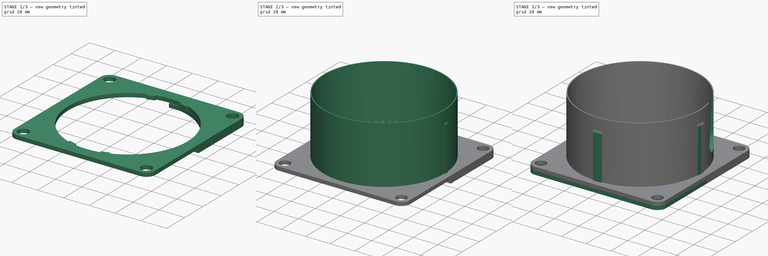
[diagram: build sequence overview — one tinted view per stage of 3, left to right]
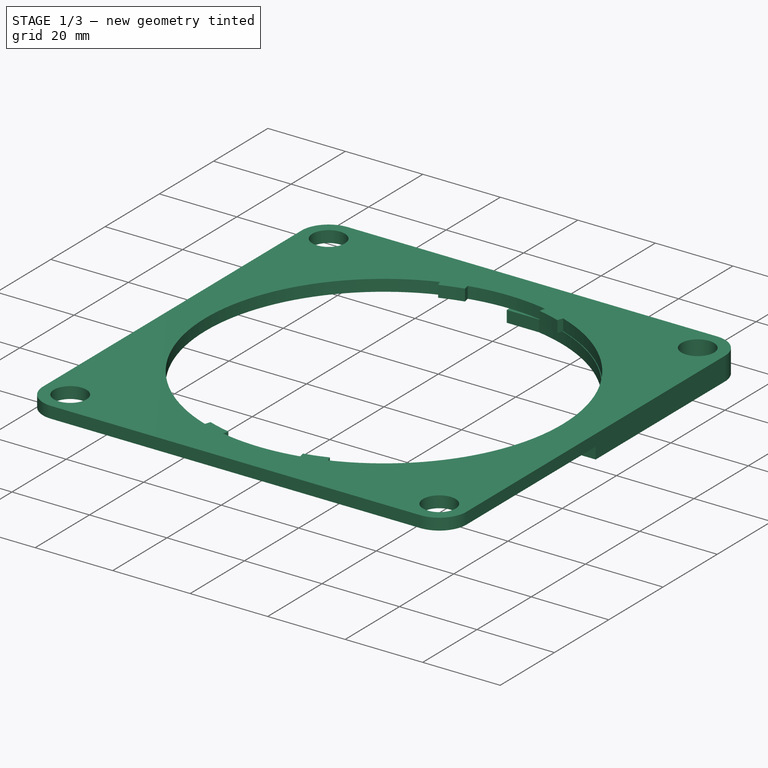
[diagram: stage 1 of 3 — iso view after this stage's code; geometry added in this stage tinted green]
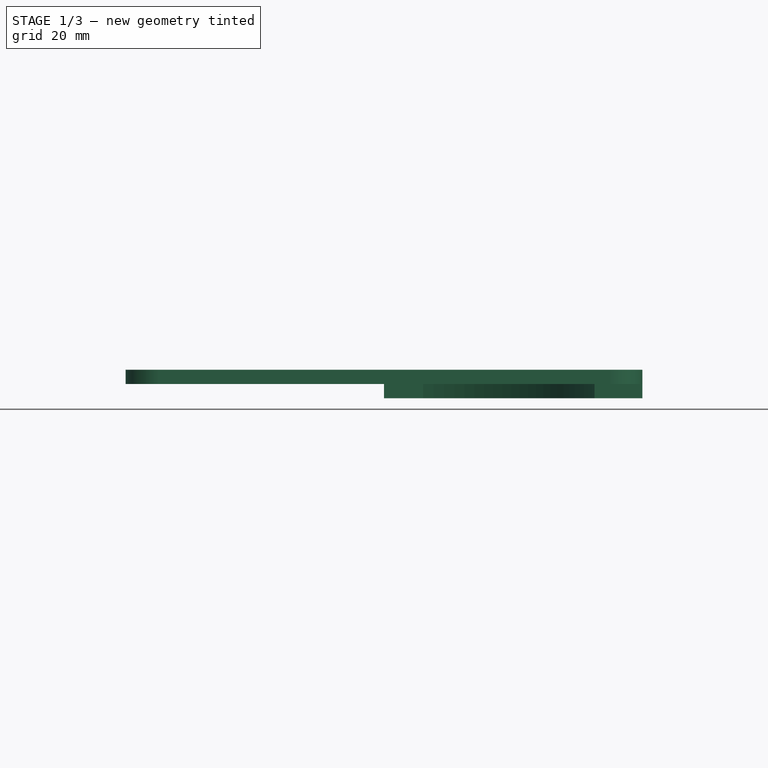
[diagram: stage 1 of 3 — front view after this stage's code; geometry added in this stage tinted green]
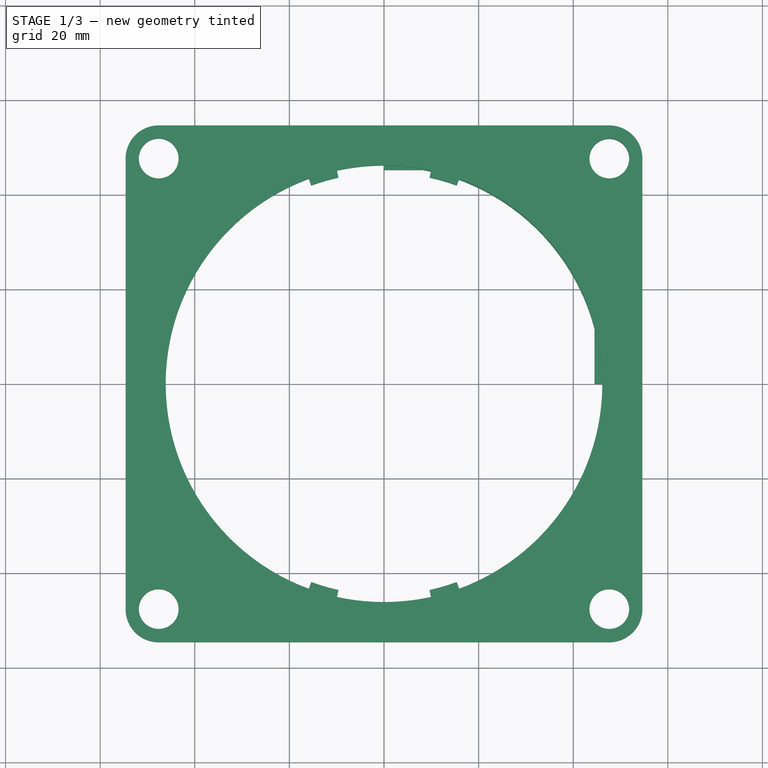
[diagram: stage 1 of 3 — top view after this stage's code; geometry added in this stage tinted green]
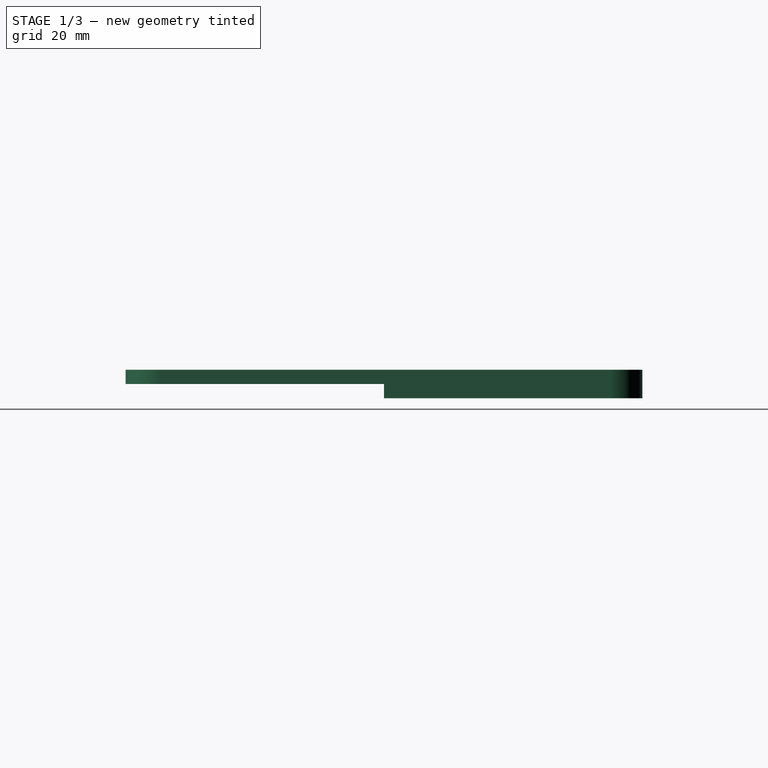
[diagram: stage 1 of 3 — right view after this stage's code; geometry added in this stage tinted green]
FCSTD DOCUMENT  (FreeCAD 0.19R24291 (Git))
Label: Фланец колец2
License: All rights reserved
LicenseURL: http://en.wikipedia.org/wiki/All_rights_reserved
objects: Sketcher::SketchObject×5, PartDesign::Mirrored×5, PartDesign::MultiTransform×3, PartDesign::Pad×2, PartDesign::Revolution×2, PartDesign::Body×2, PartDesign::PolarPattern×1, PartDesign::Plane×1, PartDesign::Pocket×1, PartDesign::SubShapeBinder×1
note: 28 computed .brp shape members not serialized (recipe doc carries the construction recipe); baked Part::Feature solids carry a one-line shape summary decoded from their .brp

FEATURE [Sketcher::SketchObject] Sketch
  FullyConstrained = false
  MapMode = 5
  Support = -> [XY_Plane]
  sketch-geometry (11):
    g0: LineSegment StartX=0 StartY=0 StartZ=0 EndX=56.9502 EndY=56.9502 EndZ=0
    g1: Circle CenterX=47.625 CenterY=47.625 CenterZ=0 NormalX=0 NormalY=0 NormalZ=1 AngleXU=0 Radius=4.2
    g2: LineSegment StartX=0 StartY=45.25 StartZ=0 EndX=8.2727 EndY=45.25 EndZ=0
    g3: LineSegment StartX=44.5 StartY=0 StartZ=0 EndX=44.5 EndY=11.6512 EndZ=0
    g4: ArcOfCircle CenterX=0 CenterY=0 CenterZ=0 NormalX=0 NormalY=0 NormalZ=1 AngleXU=0 Radius=46 StartAngle=0.256076 EndAngle=1.38997
    g5: ArcOfCircle CenterX=47.625 CenterY=47.625 CenterZ=0 NormalX=0 NormalY=0 NormalZ=1 AngleXU=0 Radius=7 StartAngle=1.59842e-08 EndAngle=1.5708
    g6: LineSegment StartX=47.625 StartY=54.625 StartZ=0 EndX=0 EndY=54.625 EndZ=0
    g7: LineSegment StartX=54.625 StartY=47.625 StartZ=0 EndX=54.625 EndY=0 EndZ=0
    g8: LineSegment StartX=0 StartY=45.25 StartZ=0 EndX=0 EndY=54.625 EndZ=0
    g9: LineSegment StartX=44.5 StartY=0 StartZ=0 EndX=54.625 EndY=0 EndZ=0
    g10: ArcOfCircle CenterX=0 CenterY=0 CenterZ=0 NormalX=0 NormalY=0 NormalZ=1 AngleXU=0 Radius=49.35 StartAngle=0 EndAngle=1.5708
  constraints (33):
    c: Coincident(g0,g-1)
    c: Angle(g-1,g0) = 0.785398
    c: PointOnObject(g1,g0)
    c: PointOnObject(g2,g-2)
    c: Horizontal(g2)
    c: PointOnObject(g3,g-1)
    c: Vertical(g3)
    c: Coincident(g4,g-1)
    c: Coincident(g4,g3)
    c: Coincident(g4,g2)
    c: Coincident(g5,g1)
    c: PointOnObject(g6,g-2)
    c: Horizontal(g6)
    c: PointOnObject(g7,g-1)
    c: Vertical(g7)
    c: Distance(g4,g3) = 44.5
    c: Distance(g4,g2) = 45.25
    c: Diameter(g4) = 92
    c: Coincident(g8,g2)
    c: Coincident(g8,g6)
    c: Coincident(g9,g3)
    c: Coincident(g9,g7)
    c: Distance(g1,g-1) = 47.625
    c: Diameter(g1) = 8.4
    c: Diameter(g5) = 14
    c: Coincident(g10,g4)
    c: PointOnObject(g10,g-1)
    c: PointOnObject(g10,g-2)
    c: Diameter(g10) = 98.7
    c: Coincident(g7,g5)
    c: Coincident(g6,g5)
    c: Tangent(g5,g7)
    c: Tangent(g5,g6)
FEATURE [PartDesign::Pad] Pad
  Direction = (1,1,1)
  Length = 3
  Length2 = 100
  Profile = -> Sketch
  Reversed = true
  Type = 0
FEATURE [PartDesign::Body] Body
  Group = -> [Sketch,Pad,Sketch001,Revolution,Sketch002,Revolution001,MultiTransform,Mirrored,Mirrored001,MultiTransform001,Mirrored002,PolarPattern,DatumPlane,Sketch003,Pocket]
  Origin = -> Origin
  Tip = -> Pocket
FEATURE [Sketcher::SketchObject] Sketch004
  FullyConstrained = true
  MapMode = 5
  Support = -> [XY_Plane001]
  sketch-geometry (13):
    g0: ArcOfCircle CenterX=0 CenterY=0 CenterZ=0 NormalX=0 NormalY=0 NormalZ=1 AngleXU=0 Radius=46.15 StartAngle=0 EndAngle=1.21915
    g1: Circle CenterX=47.625 CenterY=47.625 CenterZ=0 NormalX=0 NormalY=0 NormalZ=1 AngleXU=0 Radius=4.2
    g2: ArcOfCircle CenterX=47.625 CenterY=47.625 CenterZ=0 NormalX=0 NormalY=0 NormalZ=1 AngleXU=0 Radius=7 StartAngle=6.28319 EndAngle=7.85398
    g3: LineSegment StartX=47.625 StartY=54.625 StartZ=0 EndX=0 EndY=54.625 EndZ=0
    g4: LineSegment StartX=54.625 StartY=47.625 StartZ=0 EndX=54.625 EndY=0 EndZ=0
    g5: ArcOfCircle CenterX=0 CenterY=0 CenterZ=0 NormalX=0 NormalY=0 NormalZ=1 AngleXU=0 Radius=46.15 StartAngle=1.35363 EndAngle=1.5708
    g6: ArcOfCircle CenterX=0 CenterY=0 CenterZ=0 NormalX=0 NormalY=0 NormalZ=1 AngleXU=0 Radius=44.65 StartAngle=1.21915 EndAngle=1.35363
    g7: LineSegment StartX=9.62052 StartY=43.6012 StartZ=0 EndX=9.94371 EndY=45.066 EndZ=0
    g8: LineSegment StartX=15.3795 StartY=41.9177 StartZ=0 EndX=15.8962 EndY=43.3259 EndZ=0
    g9: LineSegment StartX=9.62052 StartY=43.6012 StartZ=0 EndX=12.5 EndY=42.7595 EndZ=0
    g10: LineSegment StartX=12.5 StartY=42.7595 StartZ=0 EndX=15.3795 EndY=41.9177 EndZ=0
    g11: LineSegment StartX=2.8e-15 StartY=46.15 StartZ=0 EndX=0 EndY=54.625 EndZ=0
    g12: LineSegment StartX=46.15 StartY=0 StartZ=0 EndX=54.625 EndY=0 EndZ=0
  constraints (38):
    c: Coincident(g0,g-1)
    c: Diameter(g0) = 92.3
    c: DistanceX(g1) = 47.625
    c: DistanceY(g1) = 47.625
    c: Diameter(g1) = 8.4
    c: Coincident(g2,g1)
    c: Diameter(g2) = 14
    c: Coincident(g3,g2)
    c: PointOnObject(g3,g-2)
    c: Horizontal(g3)
    c: Coincident(g4,g2)
    c: PointOnObject(g4,g-1)
    c: Vertical(g4)
    c: Tangent(g2,g4)
    c: Tangent(g2,g3)
    c: Coincident(g5,g0)
    c: PointOnObject(g5,g-2)
    c: Coincident(g6,g0)
    c: Coincident(g7,g6)
    c: Coincident(g7,g5)
    c: Coincident(g8,g6)
    c: Coincident(g8,g0)
    c: Perpendicular(g6,g8)
    c: Perpendicular(g6,g7)
    c: Equal(g0,g5)
    c: PointOnObject(g0,g-1)
    c: Distance(g8) = 1.5
    c: Distance(g6,g6) = 6
    c: Coincident(g9,g6)
    c: Coincident(g10,g9)
    c: Coincident(g10,g6)
    c: Equal(g10,g9)
    c: Parallel(g10,g9)
    c: Distance(g9,g-2) = 12.5
    c: Coincident(g11,g5)
    c: Coincident(g11,g3)
    c: Coincident(g12,g0)
    c: Coincident(g12,g4)
FEATURE [PartDesign::SubShapeBinder] Binder
  BindMode = 0
  ClaimChildren = false
  Context = -> Body001 [Binder.]
  Fuse = false
  MakeFace = true
  PartialLoad = false
  Relative = true
  Support = -> [Body[Pocket.Face5]]
  _Version = 2
FEATURE [PartDesign::Pad] Pad001
  Direction = (1,1,1)
  Length = 3
  Length2 = 100
  Profile = -> Sketch004
  Type = 0
FEATURE [PartDesign::Mirrored] Mirrored003
  MirrorPlane = -> Sketch004 [V_Axis]
FEATURE [PartDesign::Mirrored] Mirrored004
  MirrorPlane = -> Sketch004 [H_Axis]
FEATURE [PartDesign::MultiTransform] MultiTransform002
  BaseFeature = -> Pad001
  Originals = -> [Pad001]
  Transformations = -> [Mirrored003,Mirrored004]
FEATURE [PartDesign::Body] Body001
  Group = -> [Sketch004,Binder,Pad001,MultiTransform002,Mirrored003,Mirrored004]
  Origin = -> Origin001
  Tip = -> MultiTransform002
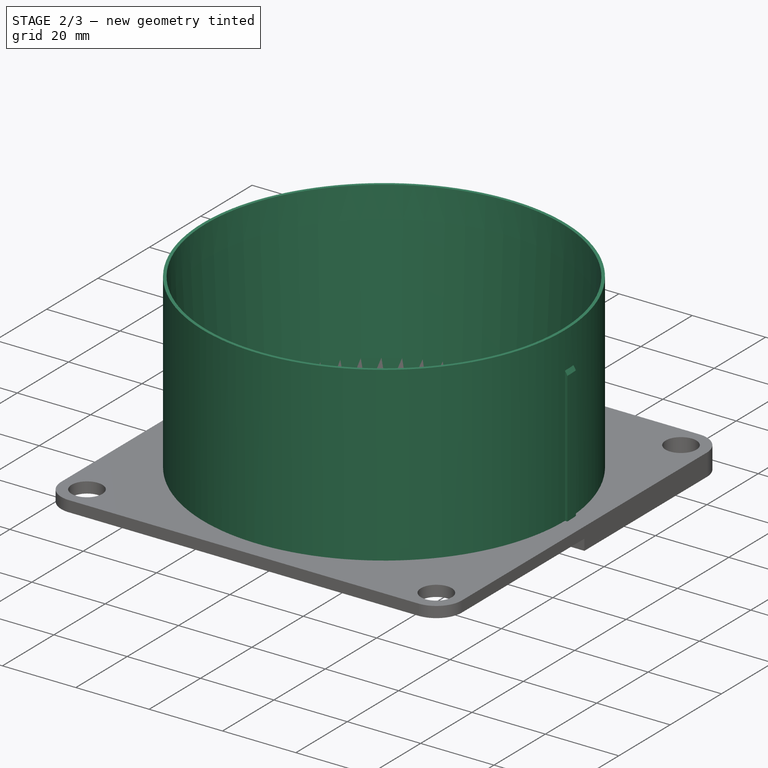
[diagram: stage 2 of 3 — iso view after this stage's code; geometry added in this stage tinted green]
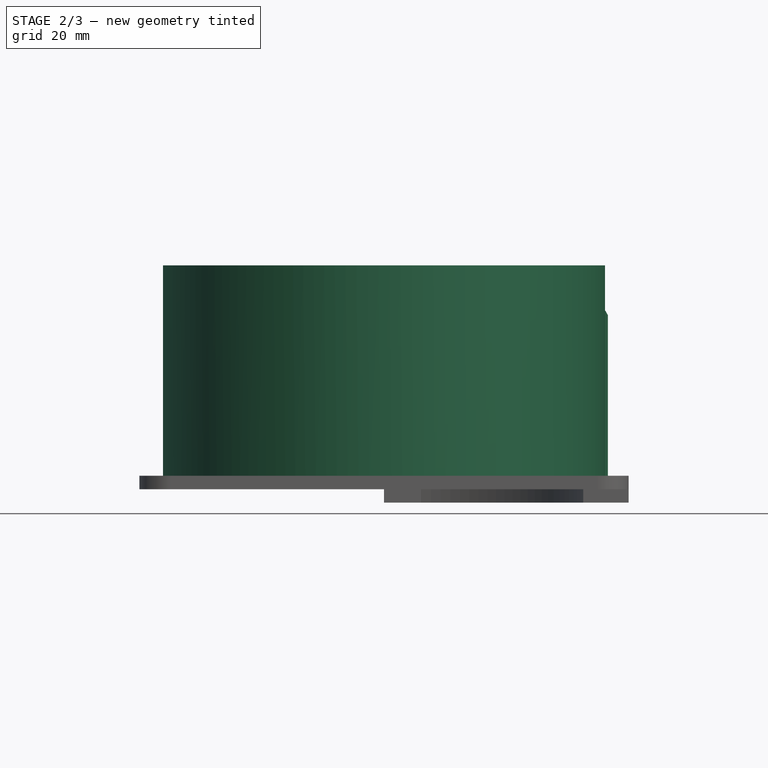
[diagram: stage 2 of 3 — front view after this stage's code; geometry added in this stage tinted green]
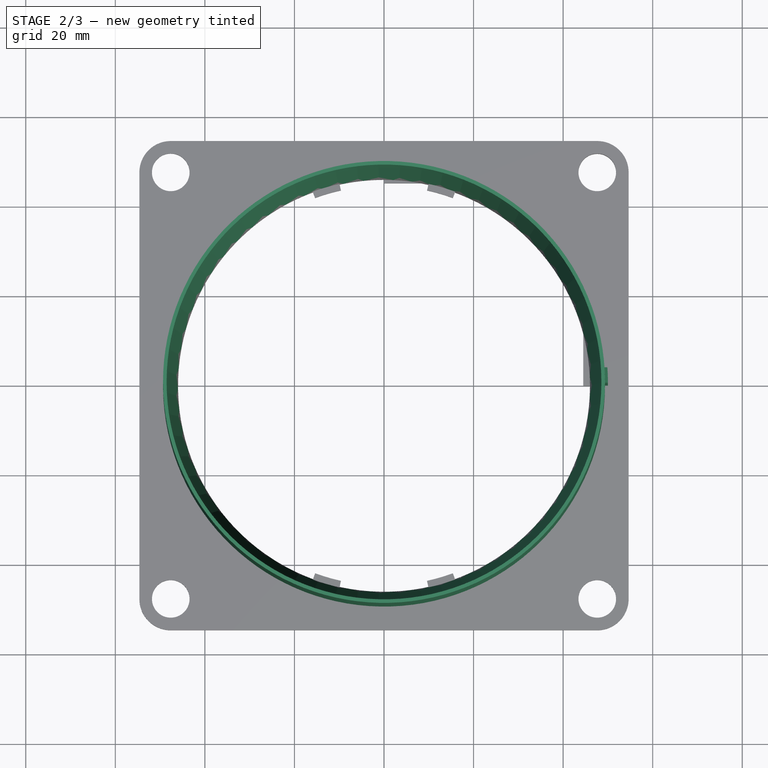
[diagram: stage 2 of 3 — top view after this stage's code; geometry added in this stage tinted green]
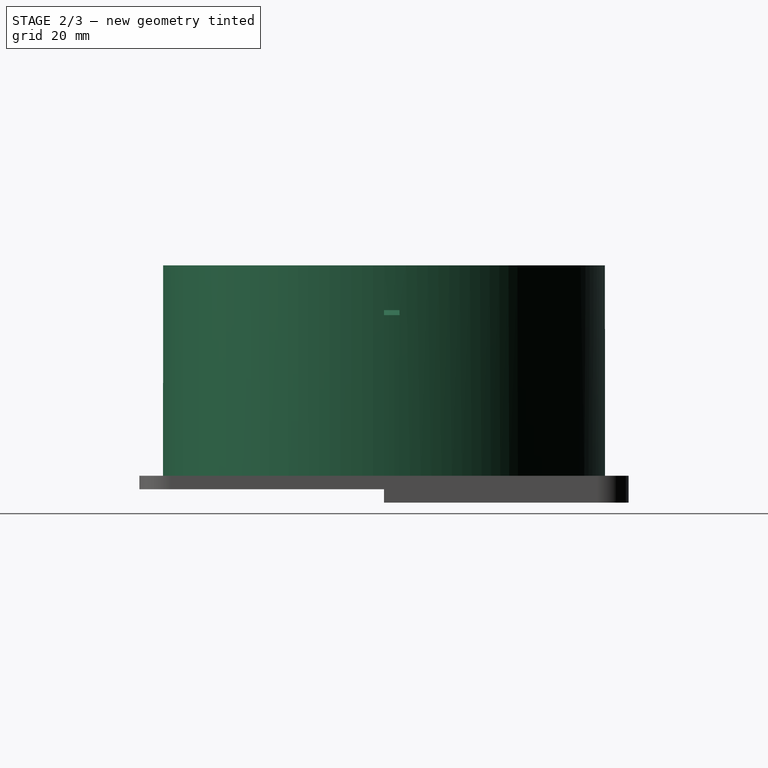
[diagram: stage 2 of 3 — right view after this stage's code; geometry added in this stage tinted green]
FEATURE [Sketcher::SketchObject] Sketch001
  FullyConstrained = true
  MapMode = 5
  Placement = pos=(0,0,0) rot=(1,0,0;1.5708rad)
  Support = -> [XZ_Plane]
  sketch-geometry (4):
    g0: LineSegment StartX=46 StartY=0 StartZ=0 EndX=48.55 EndY=50 EndZ=0
    g1: LineSegment StartX=48.55 StartY=50 StartZ=0 EndX=49.35 EndY=50 EndZ=0
    g2: LineSegment StartX=49.35 StartY=50 StartZ=0 EndX=49.35 EndY=0 EndZ=0
    g3: LineSegment StartX=49.35 StartY=0 StartZ=0 EndX=46 EndY=0 EndZ=0
  constraints (13):
    c: PointOnObject(g0,g-1)
    c: Coincident(g0,g1)
    c: Horizontal(g1)
    c: Coincident(g1,g2)
    c: PointOnObject(g2,g-1)
    c: Vertical(g2)
    c: Coincident(g2,g3)
    c: Coincident(g3,g0)
    c: Distance(g0,g-1) = 46
    c: Distance(g2,g-2) = 49.35
    c: Distance(g1) = 0.8
    c: Distance(g2) = 50
    c: Distance(g3) = 3.35
FEATURE [PartDesign::Revolution] Revolution
  Angle = 360
  Axis = (0,2e-16,1)
  Base = (0,0,0)
  BaseFeature = -> Pad
  Profile = -> Sketch001
  ReferenceAxis = -> Sketch001 [V_Axis]
  Reversed = true
FEATURE [Sketcher::SketchObject] Sketch002
  FullyConstrained = true
  MapMode = 5
  Placement = pos=(0,0,0) rot=(1,0,0;1.5708rad)
  Support = -> [XZ_Plane]
  sketch-geometry (4):
    g0: LineSegment StartX=49.35 StartY=0 StartZ=0 EndX=49.35 EndY=40 EndZ=0
    g1: LineSegment StartX=49.35 StartY=40 StartZ=0 EndX=50 EndY=38.8742 EndZ=0
    g2: LineSegment StartX=50 StartY=38.8742 StartZ=0 EndX=50 EndY=0 EndZ=0
    g3: LineSegment StartX=49.35 StartY=0 StartZ=0 EndX=50 EndY=0 EndZ=0
  constraints (12):
    c: PointOnObject(g0,g-1)
    c: Vertical(g0)
    c: Coincident(g1,g0)
    c: Coincident(g2,g1)
    c: PointOnObject(g2,g-1)
    c: Vertical(g2)
    c: Coincident(g3,g0)
    c: Coincident(g3,g2)
    c: Angle(g0,g1) = 0.523599
    c: Distance(g0,g-2) = 49.35
    c: Distance(g3) = 0.65
    c: Distance(g0) = 40
FEATURE [PartDesign::Revolution] Revolution001
  Angle = 4
  Axis = (0,2e-16,1)
  Base = (0,0,0)
  BaseFeature = -> Revolution
  Profile = -> Sketch002
  ReferenceAxis = -> Sketch002 [V_Axis]
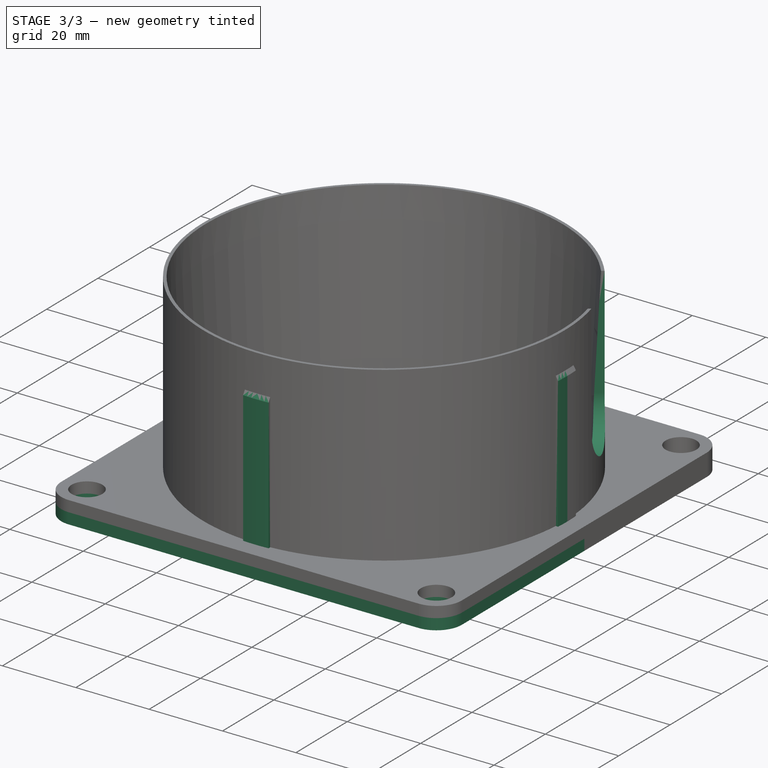
[diagram: stage 3 of 3 — iso view after this stage's code; geometry added in this stage tinted green]
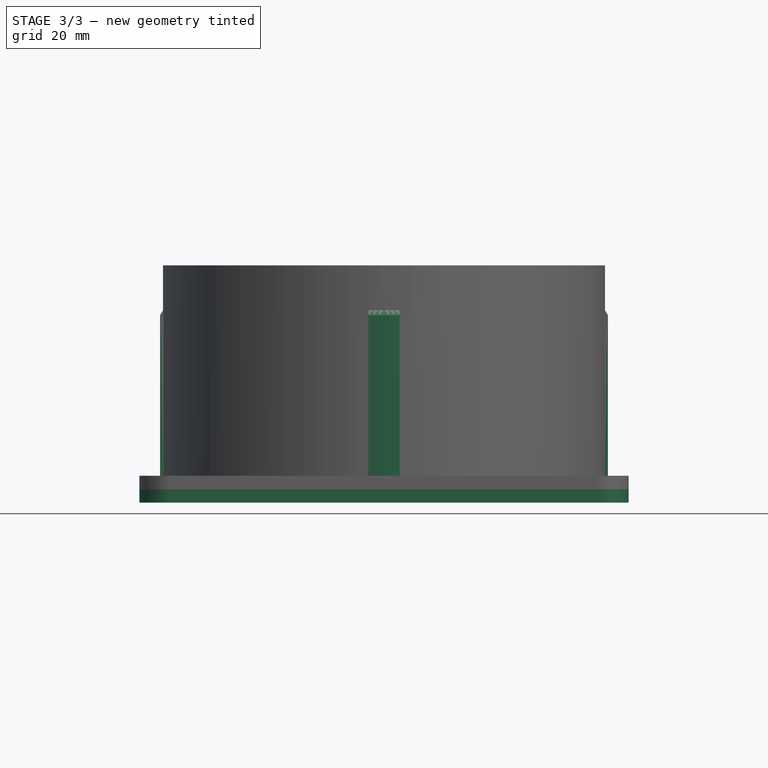
[diagram: stage 3 of 3 — front view after this stage's code; geometry added in this stage tinted green]
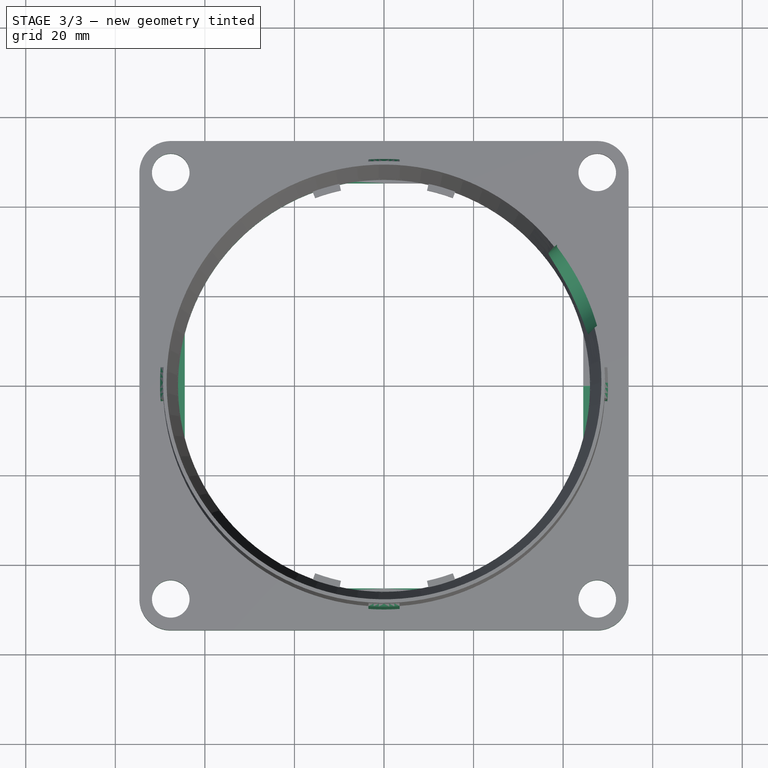
[diagram: stage 3 of 3 — top view after this stage's code; geometry added in this stage tinted green]
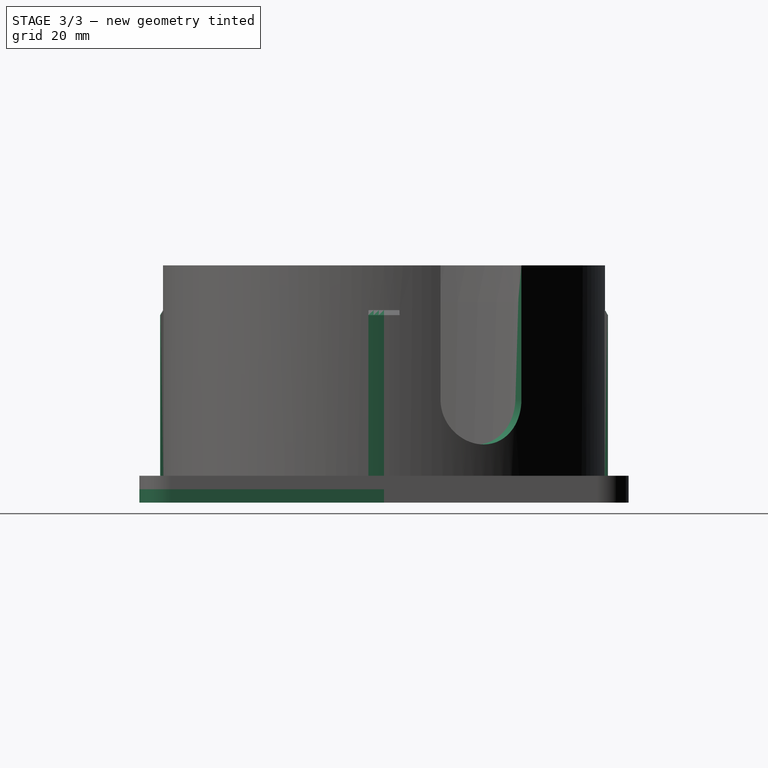
[diagram: stage 3 of 3 — right view after this stage's code; geometry added in this stage tinted green]
FEATURE [PartDesign::Mirrored] Mirrored
  MirrorPlane = -> Sketch [V_Axis]
FEATURE [PartDesign::Mirrored] Mirrored001
  MirrorPlane = -> Sketch [H_Axis]
FEATURE [PartDesign::MultiTransform] MultiTransform
  BaseFeature = -> Revolution001
  Originals = -> [Pad]
  Transformations = -> [Mirrored,Mirrored001]
FEATURE [PartDesign::Mirrored] Mirrored002
  MirrorPlane = -> XZ_Plane
FEATURE [PartDesign::PolarPattern] PolarPattern
  Angle = 360
  Axis = -> Sketch002 [V_Axis]
  Occurrences = 4
FEATURE [PartDesign::MultiTransform] MultiTransform001
  BaseFeature = -> MultiTransform
  Originals = -> [Revolution001]
  Transformations = -> [Mirrored002,PolarPattern]
FEATURE [PartDesign::Plane] DatumPlane
  AttachmentOffset = pos=(11,0,0) rot=(-0.287968,0.913318,0.287968;1.66134rad)
  Length = 96.3651
  MapMode = 7
  Placement = pos=(60.35,1.11e-14,50) rot=(-0.287968,0.913318,0.287968;1.66134rad)
  ResizeMode = 0
  Support = -> [MultiTransform001]
  Width = 173.521
FEATURE [Sketcher::SketchObject] Sketch003
  ExternalGeometry = -> [MultiTransform001]
  FullyConstrained = false
  MapMode = 5
  Placement = pos=(60.35,1.07e-14,50) rot=(-0.287968,0.913318,0.287968;1.66134rad)
  Support = -> [DatumPlane]
  sketch-geometry (11):
    g0: LineSegment StartX=0 StartY=37.5872 StartZ=0 EndX=30 EndY=37.5872 EndZ=0
    g1: LineSegment StartX=30 StartY=17.5872 StartZ=0 EndX=0 EndY=17.5872 EndZ=0
    g2: LineSegment StartX=0 StartY=17.5872 StartZ=0 EndX=0 EndY=37.5872 EndZ=0
    g3: LineSegment StartX=50 StartY=24.0974 StartZ=0 EndX=50 EndY=27.5872 EndZ=0
    g4: LineSegment StartX=50 StartY=31.0769 StartZ=0 EndX=50 EndY=27.5872 EndZ=0
    g5: LineSegment StartX=50 StartY=27.5872 StartZ=0 EndX=0 EndY=27.5872 EndZ=0
    g6: ArcOfCircle CenterX=30 CenterY=27.5872 CenterZ=0 NormalX=0 NormalY=0 NormalZ=1 AngleXU=0 Radius=10 StartAngle=4.71239 EndAngle=7.85398
    g7: LineSegment StartX=50 StartY=42.1109 StartZ=0 EndX=50 EndY=46.3109 EndZ=0
    g8: LineSegment StartX=50 StartY=50.5109 StartZ=0 EndX=50 EndY=46.3109 EndZ=0
    g9: LineSegment StartX=50 StartY=46.3109 StartZ=0 EndX=50 EndY=31.0769 EndZ=0
    g10: LineSegment StartX=50 StartY=24.0974 StartZ=0 EndX=50 EndY=8.86343 EndZ=0
  constraints (31):
    c: Coincident(g1,g2)
    c: Coincident(g2,g0)
    c: Horizontal(g0)
    c: Horizontal(g1)
    c: Vertical(g2)
    c: PointOnObject(g0,g-2)
    c: Coincident(g4,g3)
    c: Coincident(g5,g3)
    c: Horizontal(g5)
    c: PointOnObject(g5,g-2)
    c: Equal(g3,g4)
    c: PointOnObject(g6,g5)
    c: Coincident(g6,g0)
    c: Coincident(g6,g1)
    c: Tangent(g6,g0)
    c: Tangent(g6,g1)
    c: Diameter(g6) = 20
    c: Distance(g6,g3) = 20
    c: PointOnObject(g3,g-3)
    c: PointOnObject(g3,g-3)
    c: PointOnObject(g4,g-3)
    c: Coincident(g7,g-5)
    c: PointOnObject(g7,g-5)
    c: Coincident(g8,g-5)
    c: Coincident(g8,g7)
    c: Equal(g7,g8)
    c: Coincident(g9,g7)
    c: Coincident(g9,g4)
    c: Coincident(g10,g3)
    c: Coincident(g10,g-4)
    c: Equal(g10,g9)
FEATURE [PartDesign::Pocket] Pocket
  BaseFeature = -> MultiTransform001
  Length = 0
  Length2 = 100
  Profile = -> Sketch003
  Type = 3
  UpToFace = -> MultiTransform001 [Face10]
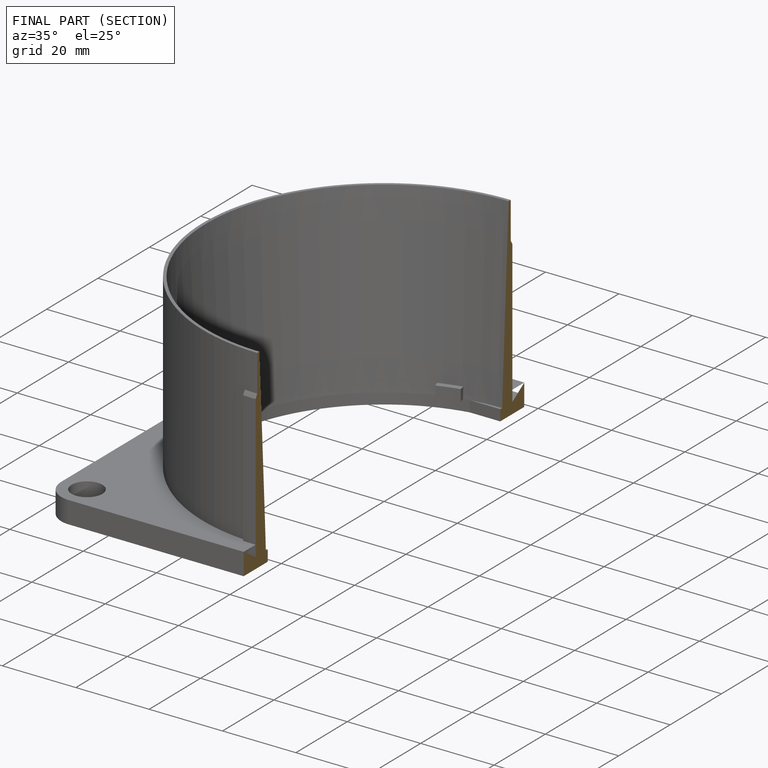
[diagram: finished part — half-section view (interior)]
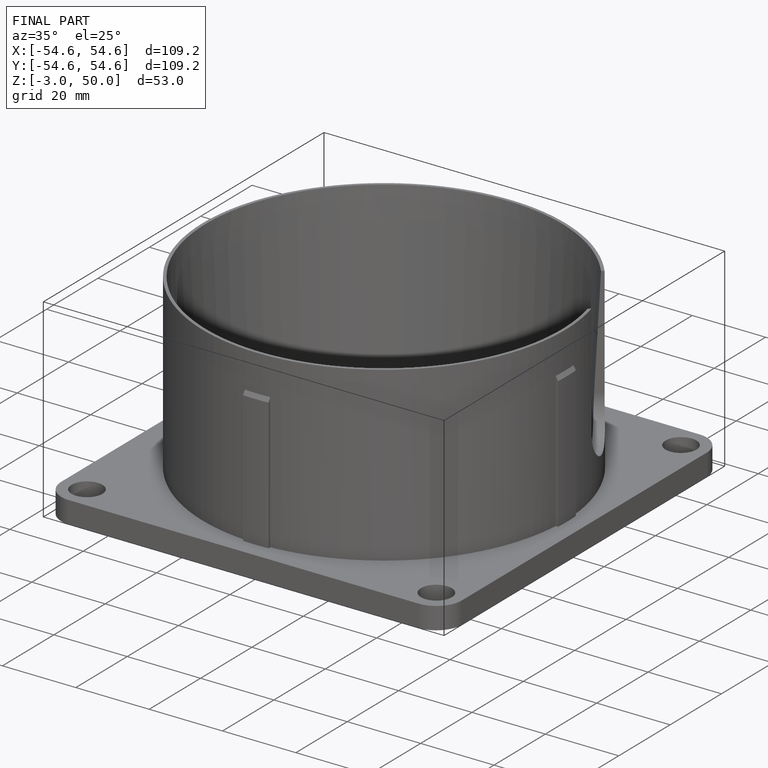
[diagram: finished part — iso view with bounding-box wireframe]
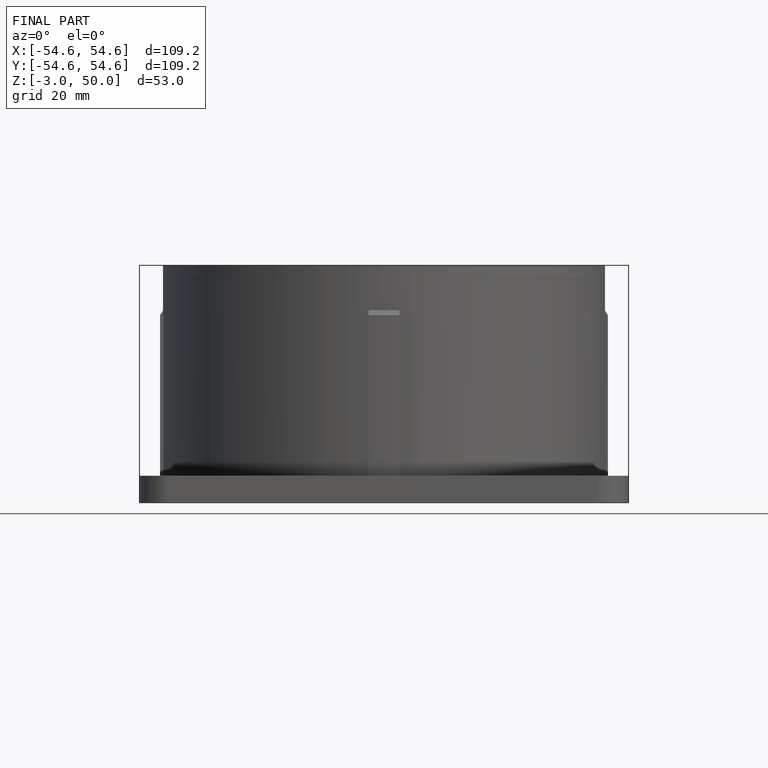
[diagram: finished part — front view with bounding-box wireframe]
